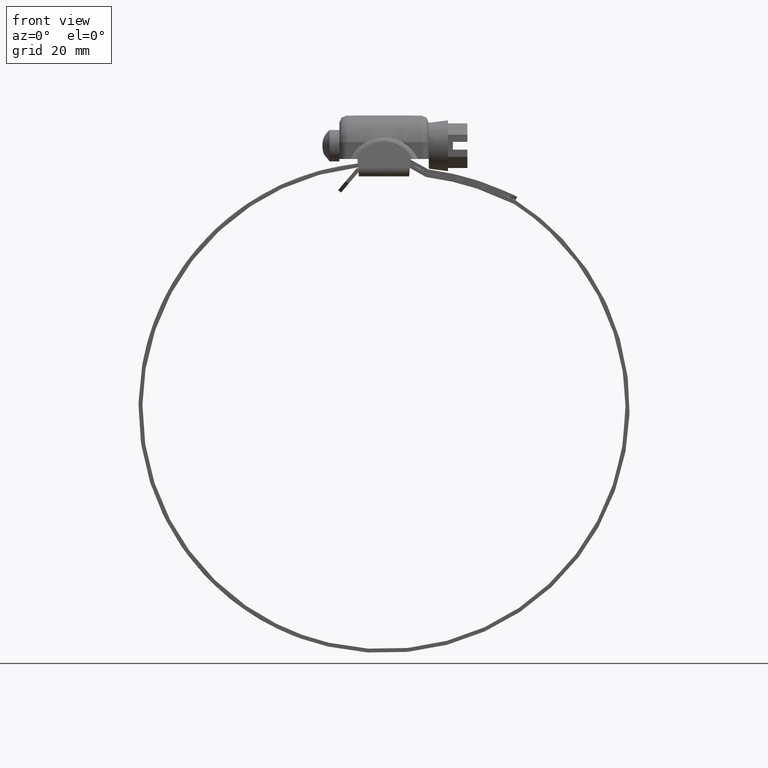
[diagram: clean part render]
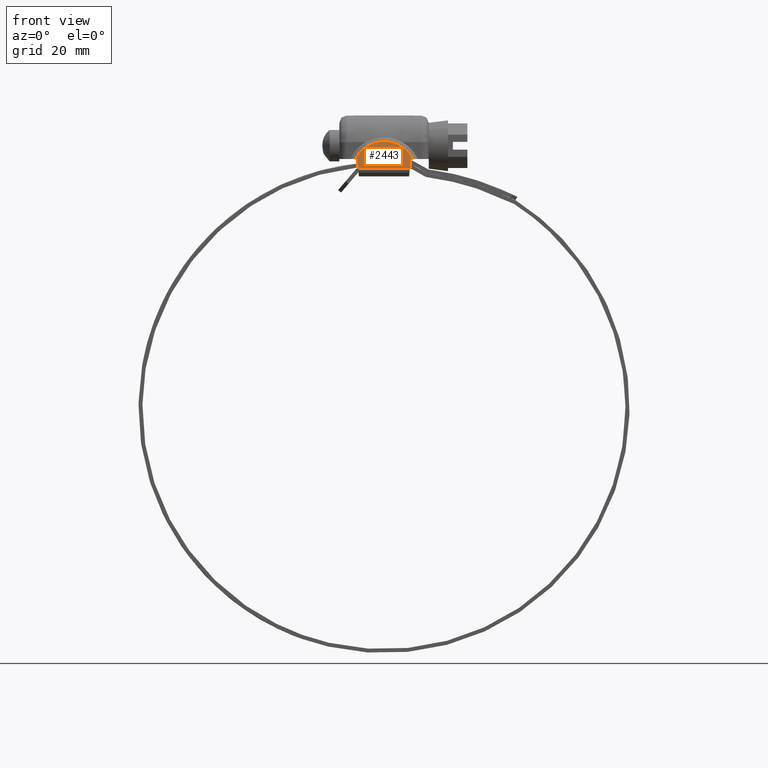
[diagram: same view with one face highlighted and labeled with its STEP entity id]
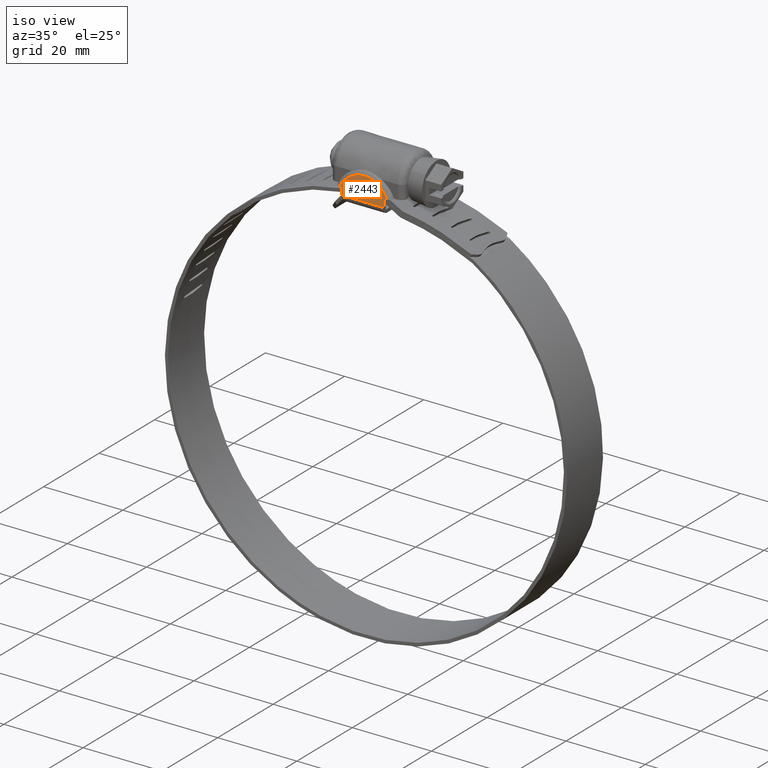
[diagram: same view with one face highlighted and labeled with its STEP entity id]
A machine part, front view. The second image highlights one B-rep face of the part: STEP entity #2443.
A second angle (iso view) of the same face is appended — the face is thin or edge-on in the first view.
In plain terms, the highlighted face is a freeform B-spline surface patch.
Its self-contained STEP definition (entity closure, byte-faithful):
#1387=CARTESIAN_POINT('',(-5.343755088336830,-7.786144508388070,11.202144060042160));
#1388=VERTEX_POINT('',#1387);
#1407=CARTESIAN_POINT('',(5.343755088336931,-7.786144508388049,11.202144060042141));
#1408=VERTEX_POINT('',#1407);
#1421=CARTESIAN_POINT('',(-5.343755088336830,-7.786144508388070,11.202144060042160));
#1422=CARTESIAN_POINT('',(5.343755088336931,-7.786144508388049,11.202144060042141));
#1423=QUASI_UNIFORM_CURVE('',1,(#1421,#1422),.UNSPECIFIED.,.F.,.U.);
#1424=EDGE_CURVE('',#1388,#1408,#1423,.T.);
#1613=CARTESIAN_POINT('',(-5.962146346480231,-7.501606321312799,13.077083000000201));
#1614=VERTEX_POINT('',#1613);
#1638=CARTESIAN_POINT('',(5.962146346480231,-7.501606321312799,13.077083000000201));
#1639=VERTEX_POINT('',#1638);
#1640=CARTESIAN_POINT('',(5.962146346480231,-7.501606321312799,13.077083000000201));
#1641=CARTESIAN_POINT('',(4.098355137342957,-6.947681100976019,16.727123706694861));
#1642=CARTESIAN_POINT('',(7.585472E-015,-6.947681100976018,16.727123706694851));
#1643=CARTESIAN_POINT('',(-4.098355137342947,-6.947681100976019,16.727123706694861));
#1644=CARTESIAN_POINT('',(-5.962146346480231,-7.501606321312799,13.077083000000201));
#1652=(BOUNDED_CURVE()B_SPLINE_CURVE(2,(#1640,#1641,#1642,#1643,#1644),.UNSPECIFIED.,.F.,.U.)B_SPLINE_CURVE_WITH_KNOTS((3,2,3),(0.0,0.500000000000000,1.0),.UNSPECIFIED.)CURVE()GEOMETRIC_REPRESENTATION_ITEM()RATIONAL_B_SPLINE_CURVE((1.0,0.852867418584550,1.0,0.852867418584550,1.0))REPRESENTATION_ITEM(''));
#1653=EDGE_CURVE('',#1639,#1614,#1652,.T.);
#2410=CARTESIAN_POINT('',(-6.557764743382014,-6.905799915372399,17.003096034159331));
#2411=CARTESIAN_POINT('',(-6.557764743382014,-7.828025836424293,10.926170794031510));
#2412=CARTESIAN_POINT('',(6.557765063216467,-6.905799915372399,17.003096034159331));
#2413=CARTESIAN_POINT('',(6.557765063216467,-7.828025836424293,10.926170794031510));
#2414=B_SPLINE_SURFACE_WITH_KNOTS('',1,1,((#2410,#2412),(#2411,#2413)),.UNSPECIFIED.,.F.,.F.,.U.,(2,2),(2,2),(0.0,6.146504781057486),(0.0,13.115529806598479),.UNSPECIFIED.);
#2415=CARTESIAN_POINT('',(-5.500000000000000,-7.501606321312620,13.077083000000201));
#2416=VERTEX_POINT('',#2415);
#2417=CARTESIAN_POINT('',(-5.500000000000000,-7.501606321312620,13.077083000000201));
#2418=CARTESIAN_POINT('',(-5.343755088336830,-7.786144508388070,11.202144060042160));
#2419=QUASI_UNIFORM_CURVE('',1,(#2417,#2418),.UNSPECIFIED.,.F.,.U.);
#2420=EDGE_CURVE('',#2416,#1388,#2419,.T.);
#2421=ORIENTED_EDGE('',*,*,#2420,.T.);
#2422=ORIENTED_EDGE('',*,*,#1424,.T.);
#2423=CARTESIAN_POINT('',(5.500000000000100,-7.501606321312799,13.077083000000201));
#2424=VERTEX_POINT('',#2423);
#2425=CARTESIAN_POINT('',(5.343755088336931,-7.786144508388049,11.202144060042141));
#2426=CARTESIAN_POINT('',(5.500000000000100,-7.501606321312799,13.077083000000201));
#2427=QUASI_UNIFORM_CURVE('',1,(#2425,#2426),.UNSPECIFIED.,.F.,.U.);
#2428=EDGE_CURVE('',#1408,#2424,#2427,.T.);
#2429=ORIENTED_EDGE('',*,*,#2428,.T.);
#2430=CARTESIAN_POINT('',(5.500000000000100,-7.501606321312799,13.077083000000201));
#2431=CARTESIAN_POINT('',(5.962146346480231,-7.501606321312799,13.077083000000201));
#2432=QUASI_UNIFORM_CURVE('',1,(#2430,#2431),.UNSPECIFIED.,.F.,.U.);
#2433=EDGE_CURVE('',#2424,#1639,#2432,.T.);
#2434=ORIENTED_EDGE('',*,*,#2433,.T.);
#2435=ORIENTED_EDGE('',*,*,#1653,.T.);
#2436=CARTESIAN_POINT('',(-5.962146346480231,-7.501606321312799,13.077083000000201));
#2437=CARTESIAN_POINT('',(-5.500000000000000,-7.501606321312620,13.077083000000201));
#2438=QUASI_UNIFORM_CURVE('',1,(#2436,#2437),.UNSPECIFIED.,.F.,.U.);
#2439=EDGE_CURVE('',#1614,#2416,#2438,.T.);
#2440=ORIENTED_EDGE('',*,*,#2439,.T.);
#2441=EDGE_LOOP('',(#2421,#2422,#2429,#2434,#2435,#2440));
#2442=FACE_OUTER_BOUND('',#2441,.T.);
#2443=ADVANCED_FACE('',(#2442),#2414,.T.);